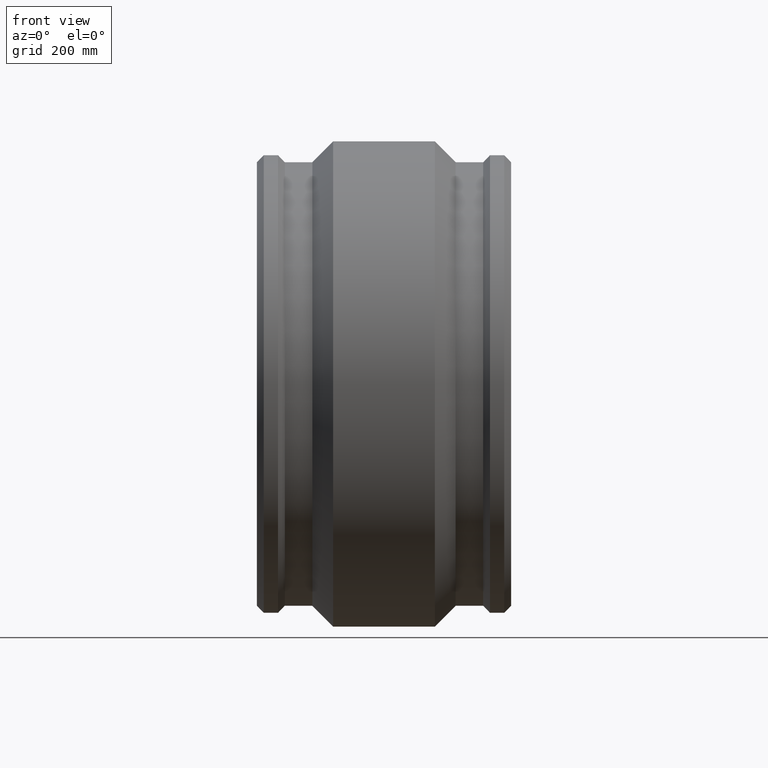
[diagram: clean part render]
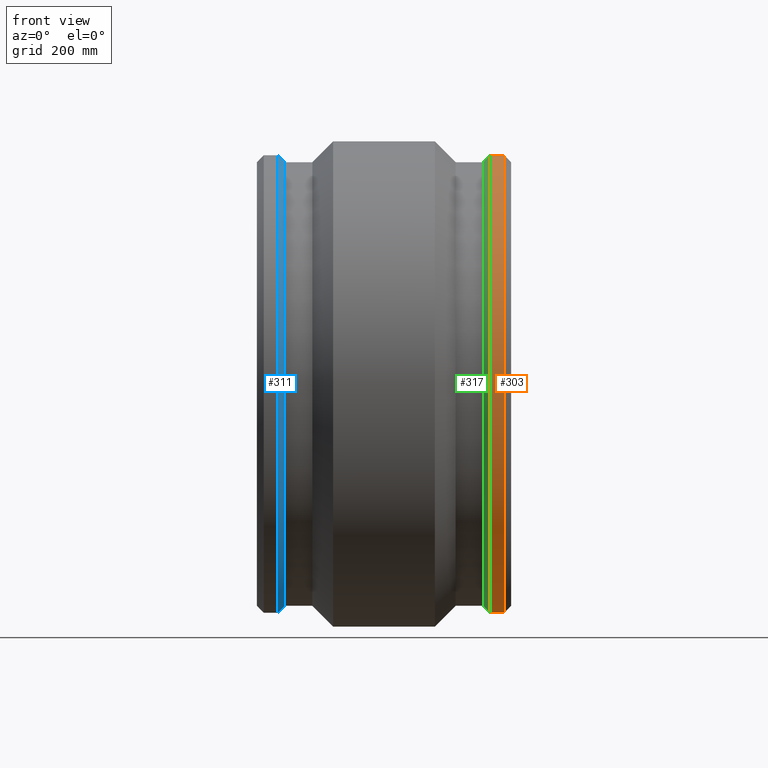
[diagram: same view with three faces highlighted in distinct colors, each labeled with its STEP entity id]
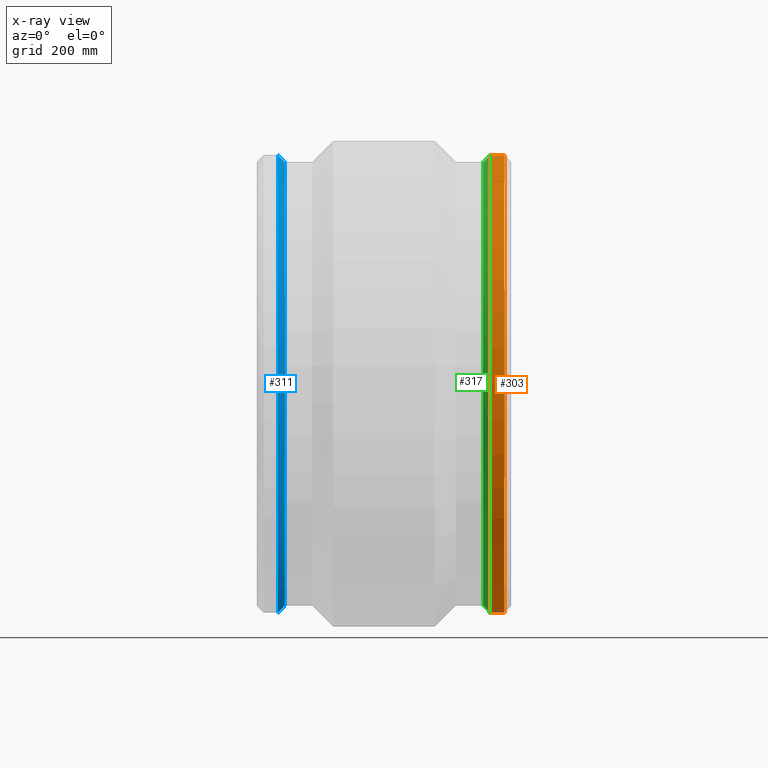
[diagram: x-ray of the same camera — body ghosted, the three highlighted faces saturated]
A machine part, front view with three faces highlighted in distinct colors.
The next image is the same camera in x-ray (body ghosted, the three faces saturated) — at least one of them is partly hidden behind the body in this view.
Their STEP definitions:

[orange] entity #303 — the highlighted cylindrical surface (bore or boss wall) has radius 450 mm, axis along (1, 0, 0).
#21=B_SPLINE_CURVE_WITH_KNOTS('',3,(#512,#513,#514,#515,#516,#517,#518,
#519,#520,#521,#522,#523,#524,#525,#526,#527,#528,#529),.UNSPECIFIED.,.F.,
 .F.,(4,2,2,2,2,2,2,2,4),(1.13008252744152,1.41260315893426,1.69512379042701,
1.97764442265502,2.26016505488304,2.54268568711106,2.82520631933908,3.10772695083182,
3.39024758232456),.UNSPECIFIED.);
#22=B_SPLINE_CURVE_WITH_KNOTS('',3,(#532,#533,#534,#535,#536,#537,#538,
#539,#540,#541,#542,#543,#544,#545,#546,#547,#548,#549,#550),
 .UNSPECIFIED.,.F.,.F.,(4,2,2,2,3,2,2,2,4),(-1.13008252744152,-0.847561895948779,
-0.565041264456037,-0.282520632228018,0.,0.282520632228018,0.565041264456036,
0.847561895948779,1.13008252744152),.UNSPECIFIED.);
#31=FACE_BOUND('',#108,.T.);
#32=FACE_BOUND('',#109,.T.);
#54=CYLINDRICAL_SURFACE('',#342,450.);
#73=FACE_OUTER_BOUND('',#107,.T.);
#107=EDGE_LOOP('',(#244));
#108=EDGE_LOOP('',(#245,#246));
#109=EDGE_LOOP('',(#247));
#152=CIRCLE('',#343,450.);
#153=CIRCLE('',#344,450.);
#176=VERTEX_POINT('',#510);
#177=VERTEX_POINT('',#511);
#178=VERTEX_POINT('',#554);
#179=VERTEX_POINT('',#556);
#202=EDGE_CURVE('',#176,#177,#21,.T.);
#204=EDGE_CURVE('',#177,#176,#22,.T.);
#206=EDGE_CURVE('',#178,#178,#152,.T.);
#207=EDGE_CURVE('',#179,#179,#153,.T.);
#244=ORIENTED_EDGE('',*,*,#206,.T.);
#245=ORIENTED_EDGE('',*,*,#204,.T.);
#246=ORIENTED_EDGE('',*,*,#202,.T.);
#247=ORIENTED_EDGE('',*,*,#207,.F.);
#303=ADVANCED_FACE('',(#73,#31,#32),#54,.T.);
#342=AXIS2_PLACEMENT_3D('',#553,#417,#418);
#343=AXIS2_PLACEMENT_3D('',#555,#419,#420);
#344=AXIS2_PLACEMENT_3D('',#557,#421,#422);
#417=DIRECTION('center_axis',(1.,1.83697019872103E-16,0.));
#418=DIRECTION('ref_axis',(-1.77635683940025E-16,1.,0.));
#419=DIRECTION('center_axis',(1.,1.83697019872103E-16,0.));
#420=DIRECTION('ref_axis',(0.,0.,-1.));
#421=DIRECTION('center_axis',(1.,1.83697019872103E-16,0.));
#422=DIRECTION('ref_axis',(0.,0.,-1.));
#510=CARTESIAN_POINT('',(215.,450.,0.));
#511=CARTESIAN_POINT('',(230.,450.,9.18485099360515E-16));
#512=CARTESIAN_POINT('Ctrl Pts',(215.,450.,-2.22044604925031E-15));
#513=CARTESIAN_POINT('Ctrl Pts',(215.,450.,-0.941735438309143));
#514=CARTESIAN_POINT('Ctrl Pts',(215.188209600698,449.996739822936,-1.94623005247851));
#515=CARTESIAN_POINT('Ctrl Pts',(215.953617458701,449.984953856025,-3.79406983066214));
#516=CARTESIAN_POINT('Ctrl Pts',(216.530814750385,449.976596982682,-4.63741646818301));
#517=CARTESIAN_POINT('Ctrl Pts',(217.86258353355,449.960900847009,-5.96918525134821));
#518=CARTESIAN_POINT('Ctrl Pts',(218.705930169986,449.952543467231,-6.54638254238657));
#519=CARTESIAN_POINT('Ctrl Pts',(220.55376994622,449.940756342672,-7.31179039794435));
#520=CARTESIAN_POINT('Ctrl Pts',(221.55826455924,449.937495659119,-7.5));
#521=CARTESIAN_POINT('Ctrl Pts',(223.44173544076,449.937495659119,-7.5));
#522=CARTESIAN_POINT('Ctrl Pts',(224.44623005378,449.940756342672,-7.31179039794435));
#523=CARTESIAN_POINT('Ctrl Pts',(226.294069830014,449.952543467231,-6.54638254238656));
#524=CARTESIAN_POINT('Ctrl Pts',(227.13741646645,449.960900847009,-5.96918525134821));
#525=CARTESIAN_POINT('Ctrl Pts',(228.469185249615,449.976596982682,-4.63741646818301));
#526=CARTESIAN_POINT('Ctrl Pts',(229.046382541299,449.984953856025,-3.79406983066214));
#527=CARTESIAN_POINT('Ctrl Pts',(229.811790399302,449.996739822936,-1.94623005247852));
#528=CARTESIAN_POINT('Ctrl Pts',(230.,450.,-0.941735438309143));
#529=CARTESIAN_POINT('Ctrl Pts',(230.,450.,-1.38777878078145E-15));
#532=CARTESIAN_POINT('Ctrl Pts',(230.,450.,-8.32667268468867E-16));
#533=CARTESIAN_POINT('Ctrl Pts',(230.,450.,0.941735438309141));
#534=CARTESIAN_POINT('Ctrl Pts',(229.811790399302,449.996739822936,1.94623005247851));
#535=CARTESIAN_POINT('Ctrl Pts',(229.046382541299,449.984953856025,3.79406983066214));
#536=CARTESIAN_POINT('Ctrl Pts',(228.469185249615,449.976596982682,4.63741646818301));
#537=CARTESIAN_POINT('Ctrl Pts',(227.13741646645,449.960900847009,5.96918525134821));
#538=CARTESIAN_POINT('Ctrl Pts',(226.294069830014,449.952543467231,6.54638254238657));
#539=CARTESIAN_POINT('Ctrl Pts',(224.44623005378,449.940756342672,7.31179039794435));
#540=CARTESIAN_POINT('Ctrl Pts',(223.44173544076,449.937495659119,7.5));
#541=CARTESIAN_POINT('Ctrl Pts',(222.5,449.937495659119,7.5));
#542=CARTESIAN_POINT('Ctrl Pts',(221.55826455924,449.937495659119,7.5));
#543=CARTESIAN_POINT('Ctrl Pts',(220.55376994622,449.940756342672,7.31179039794435));
#544=CARTESIAN_POINT('Ctrl Pts',(218.705930169986,449.952543467231,6.54638254238657));
#545=CARTESIAN_POINT('Ctrl Pts',(217.86258353355,449.960900847009,5.96918525134821));
#546=CARTESIAN_POINT('Ctrl Pts',(216.530814750385,449.976596982682,4.63741646818301));
#547=CARTESIAN_POINT('Ctrl Pts',(215.953617458701,449.984953856025,3.79406983066214));
#548=CARTESIAN_POINT('Ctrl Pts',(215.188209600698,449.996739822936,1.94623005247852));
#549=CARTESIAN_POINT('Ctrl Pts',(215.,450.,0.941735438309141));
#550=CARTESIAN_POINT('Ctrl Pts',(215.,450.,-4.16333634234434E-16));
#553=CARTESIAN_POINT('Origin',(222.5,8.67968418895686E-14,0.));
#554=CARTESIAN_POINT('',(208.5,450.,0.));
#555=CARTESIAN_POINT('Origin',(208.5,8.42250836113592E-14,0.));
#556=CARTESIAN_POINT('',(236.5,450.,0.));
#557=CARTESIAN_POINT('Origin',(236.5,8.93686001677781E-14,0.));

[blue] entity #311 — the highlighted conical surface has half-angle 45 deg.
#16=CONICAL_SURFACE('',#359,443.25,44.9999999999999);
#39=FACE_BOUND('',#124,.T.);
#81=FACE_OUTER_BOUND('',#123,.T.);
#123=EDGE_LOOP('',(#265));
#124=EDGE_LOOP('',(#266));
#158=CIRCLE('',#354,450.);
#161=CIRCLE('',#360,436.5);
#184=VERTEX_POINT('',#608);
#187=VERTEX_POINT('',#617);
#214=EDGE_CURVE('',#184,#184,#158,.T.);
#217=EDGE_CURVE('',#187,#187,#161,.T.);
#265=ORIENTED_EDGE('',*,*,#214,.T.);
#266=ORIENTED_EDGE('',*,*,#217,.F.);
#311=ADVANCED_FACE('',(#81,#39),#16,.T.);
#354=AXIS2_PLACEMENT_3D('',#609,#441,#442);
#359=AXIS2_PLACEMENT_3D('',#616,#451,#452);
#360=AXIS2_PLACEMENT_3D('',#618,#453,#454);
#441=DIRECTION('center_axis',(1.,1.83697019872103E-16,0.));
#442=DIRECTION('ref_axis',(0.,0.,-1.));
#451=DIRECTION('center_axis',(-1.,-1.83697019872103E-16,0.));
#452=DIRECTION('ref_axis',(-1.77635683940025E-16,1.,0.));
#453=DIRECTION('center_axis',(1.,1.83697019872103E-16,0.));
#454=DIRECTION('ref_axis',(0.,0.,-1.));
#608=CARTESIAN_POINT('',(-208.5,450.,0.));
#609=CARTESIAN_POINT('Origin',(-208.5,7.62342632469227E-15,0.));
#616=CARTESIAN_POINT('Origin',(-201.75,8.86338120882898E-15,0.));
#617=CARTESIAN_POINT('',(-195.,436.5,0.));
#618=CARTESIAN_POINT('Origin',(-195.,1.01033360929657E-14,0.));

[green] entity #317 — the highlighted conical surface has half-angle 45 deg.
#19=CONICAL_SURFACE('',#371,443.25,45.0000000000001);
#45=FACE_BOUND('',#136,.T.);
#87=FACE_OUTER_BOUND('',#135,.T.);
#135=EDGE_LOOP('',(#277));
#136=EDGE_LOOP('',(#278));
#152=CIRCLE('',#343,450.);
#166=CIRCLE('',#370,436.5);
#178=VERTEX_POINT('',#554);
#192=VERTEX_POINT('',#632);
#206=EDGE_CURVE('',#178,#178,#152,.T.);
#222=EDGE_CURVE('',#192,#192,#166,.T.);
#277=ORIENTED_EDGE('',*,*,#222,.T.);
#278=ORIENTED_EDGE('',*,*,#206,.F.);
#317=ADVANCED_FACE('',(#87,#45),#19,.T.);
#343=AXIS2_PLACEMENT_3D('',#555,#419,#420);
#370=AXIS2_PLACEMENT_3D('',#633,#473,#474);
#371=AXIS2_PLACEMENT_3D('',#634,#475,#476);
#419=DIRECTION('center_axis',(1.,1.83697019872103E-16,0.));
#420=DIRECTION('ref_axis',(0.,0.,-1.));
#473=DIRECTION('center_axis',(1.,1.83697019872103E-16,0.));
#474=DIRECTION('ref_axis',(0.,0.,-1.));
#475=DIRECTION('center_axis',(1.,1.83697019872103E-16,0.));
#476=DIRECTION('ref_axis',(-1.77635683940025E-16,1.,0.));
#554=CARTESIAN_POINT('',(208.5,450.,0.));
#555=CARTESIAN_POINT('Origin',(208.5,8.42250836113592E-14,0.));
#632=CARTESIAN_POINT('',(195.,436.5,0.));
#633=CARTESIAN_POINT('Origin',(195.,8.17451738430858E-14,0.));
#634=CARTESIAN_POINT('Origin',(201.75,8.29851287272225E-14,0.));